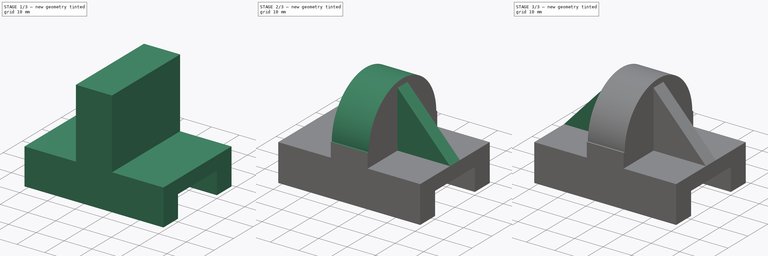
[diagram: build sequence overview — one tinted view per stage of 3, left to right]
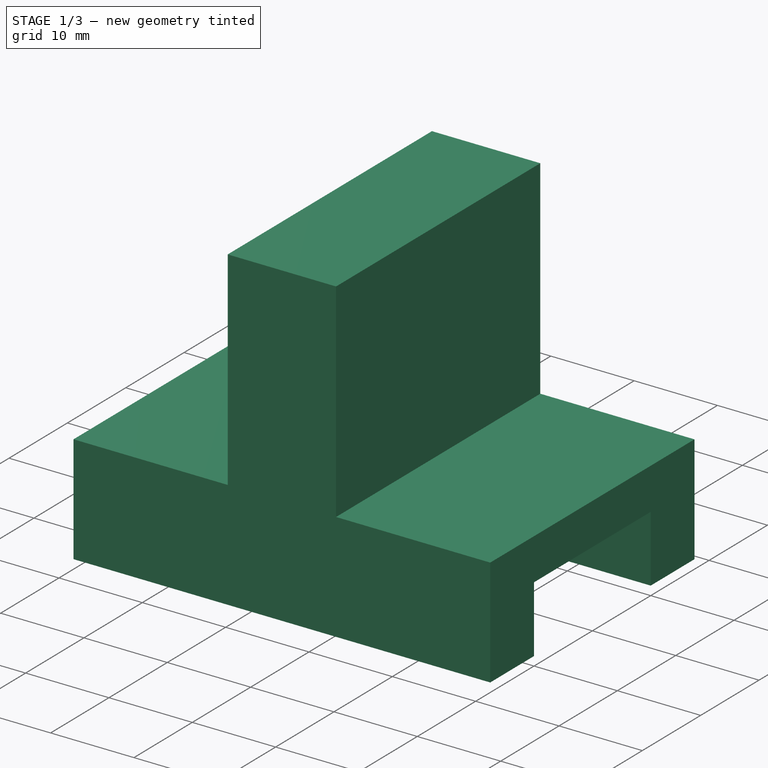
[diagram: stage 1 of 3 — iso view after this stage's code; geometry added in this stage tinted green]
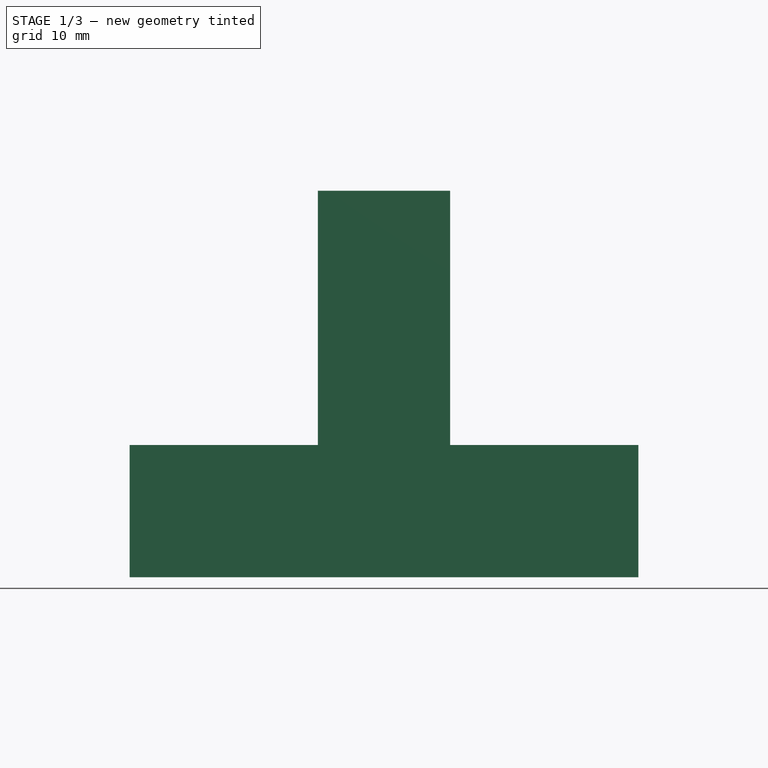
[diagram: stage 1 of 3 — front view after this stage's code; geometry added in this stage tinted green]
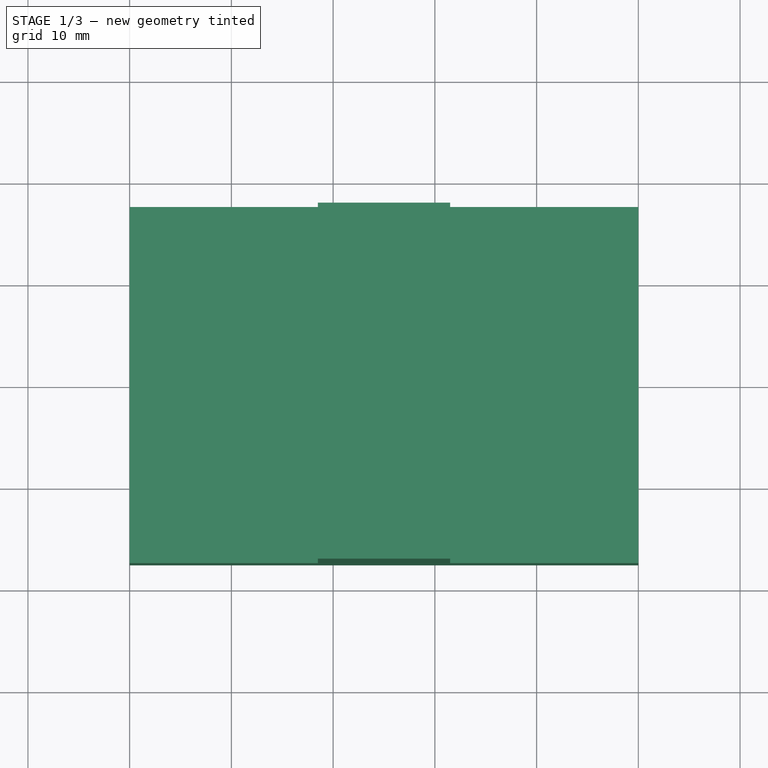
[diagram: stage 1 of 3 — top view after this stage's code; geometry added in this stage tinted green]
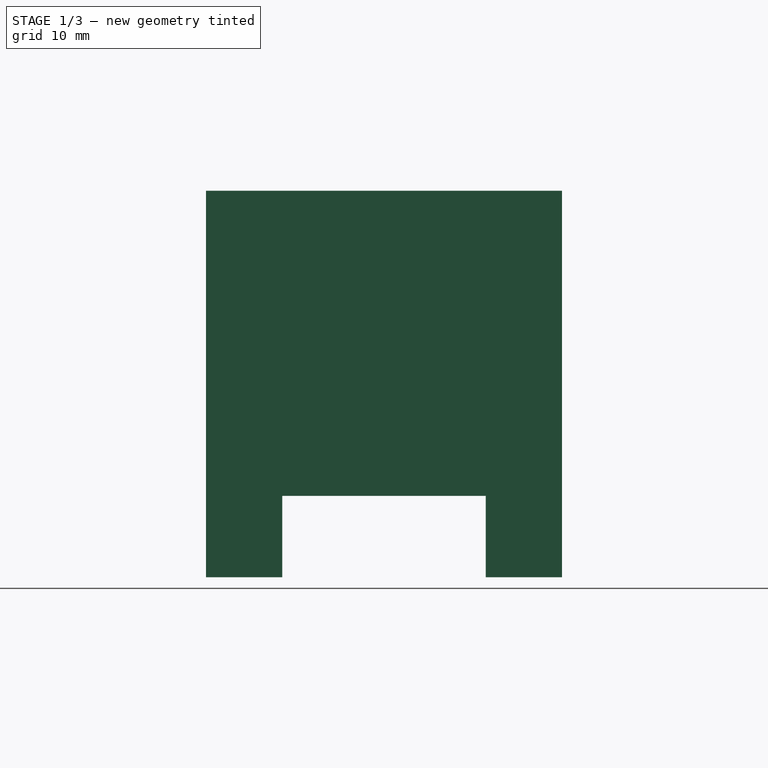
[diagram: stage 1 of 3 — right view after this stage's code; geometry added in this stage tinted green]
FCSTD DOCUMENT  (FreeCAD 1.0R39109 (Git))
Label: Задание1-3
License: All rights reserved
LicenseURL: https://en.wikipedia.org/wiki/All_rights_reserved
objects: Sketcher::SketchObject×7, PartDesign::Pad×4, PartDesign::Pocket×3, PartDesign::Body×1
note: 36 computed .brp shape members not serialized (recipe doc carries the construction recipe); baked Part::Feature solids carry a one-line shape summary decoded from their .brp

FEATURE [Sketcher::SketchObject] Sketch
  ArcFitTolerance = 1e-06
  AttachmentSupport = -> [YZ_Plane]
  FullyConstrained = true
  MakeInternals = false
  MapMode = 5
  Placement = pos=(0,0,0) rot=(0.57735,0.57735,0.57735;2.0944rad)
  sketch-geometry (8):
    g0: LineSegment StartX=17.5 StartY=0 StartZ=0 EndX=17.5 EndY=13 EndZ=0
    g1: LineSegment StartX=17.5 StartY=13 StartZ=0 EndX=-17.5 EndY=13 EndZ=0
    g2: LineSegment StartX=-17.5 StartY=13 StartZ=0 EndX=-17.5 EndY=0 EndZ=0
    g3: LineSegment StartX=-17.5 StartY=0 StartZ=0 EndX=-10 EndY=0 EndZ=0
    g4: LineSegment StartX=17.5 StartY=0 StartZ=0 EndX=10 EndY=0 EndZ=0
    g5: LineSegment StartX=-10 StartY=0 StartZ=0 EndX=-10 EndY=8 EndZ=0
    g6: LineSegment StartX=10 StartY=0 StartZ=0 EndX=10 EndY=8 EndZ=0
    g7: LineSegment StartX=10 StartY=8 StartZ=0 EndX=-10 EndY=8 EndZ=0
  constraints (24):
    c: Coincident(g0,g1)
    c: Coincident(g1,g2)
    c: Horizontal(g1)
    c: Vertical(g0)
    c: Vertical(g2)
    c: Distance(g0,g2) = 35
    c: Distance(g2,g1) = 13
    c: PointOnObject(g2,g-1)
    c: Distance(g0,g-2) = 17.5
    c: Distance(g3) = 7.5
    c: Coincident(g3,g2)
    c: PointOnObject(g3,g-1)
    c: Distance(g4) = 7.5
    c: Coincident(g4,g0)
    c: PointOnObject(g4,g-1)
    c: Horizontal(g4)
    c: Distance(g5) = 8
    c: Coincident(g5,g3)
    c: Vertical(g5)
    c: Distance(g6) = 8
    c: Coincident(g6,g4)
    c: Vertical(g6)
    c: Coincident(g7,g6)
    c: Coincident(g7,g5)
FEATURE [PartDesign::Pad] Pad
  Direction = (1,0,0)
  Length = 50
  Length2 = 10
  Placement = pos=(0,0,0) rot=(1,1,1;2.0944rad)
  Profile = -> Sketch
  ReferenceAxis = -> Sketch [N_Axis]
  Refine = true
  Suppressed = false
  Type = 0
FEATURE [Sketcher::SketchObject] Sketch001
  ArcFitTolerance = 1e-06
  AttachmentSupport = -> [Pad]
  FullyConstrained = true
  MakeInternals = false
  MapMode = 5
  Placement = pos=(0,2.9e-15,13) rot=(0,0,-1;1.5708rad)
  sketch-geometry (4):
    g0: LineSegment StartX=-17.5 StartY=31.5 StartZ=0 EndX=-17.5 EndY=18.5 EndZ=0
    g1: LineSegment StartX=-17.5 StartY=18.5 StartZ=0 EndX=17.5 EndY=18.5 EndZ=0
    g2: LineSegment StartX=17.5 StartY=18.5 StartZ=0 EndX=17.5 EndY=31.5 EndZ=0
    g3: LineSegment StartX=17.5 StartY=31.5 StartZ=0 EndX=-17.5 EndY=31.5 EndZ=0
  constraints (12):
    c: Coincident(g0,g1)
    c: Coincident(g1,g2)
    c: Coincident(g2,g3)
    c: Coincident(g3,g0)
    c: Vertical(g0)
    c: Vertical(g2)
    c: Horizontal(g1)
    c: Horizontal(g3)
    c: Distance(g0,g2) = 35
    c: Distance(g1,g3) = 13
    c: Distance(g1,g-2) = 17.5
    c: Distance(g1,g-1) = 18.5
FEATURE [PartDesign::Pad] Pad001
  BaseFeature = -> Pad
  Direction = (0,0,1)
  Length = 25
  Length2 = 10
  Placement = pos=(0,0,0) rot=(1,1,1;2.0944rad)
  Profile = -> Sketch001
  ReferenceAxis = -> Sketch001 [N_Axis]
  Refine = true
  Suppressed = false
  Type = 0
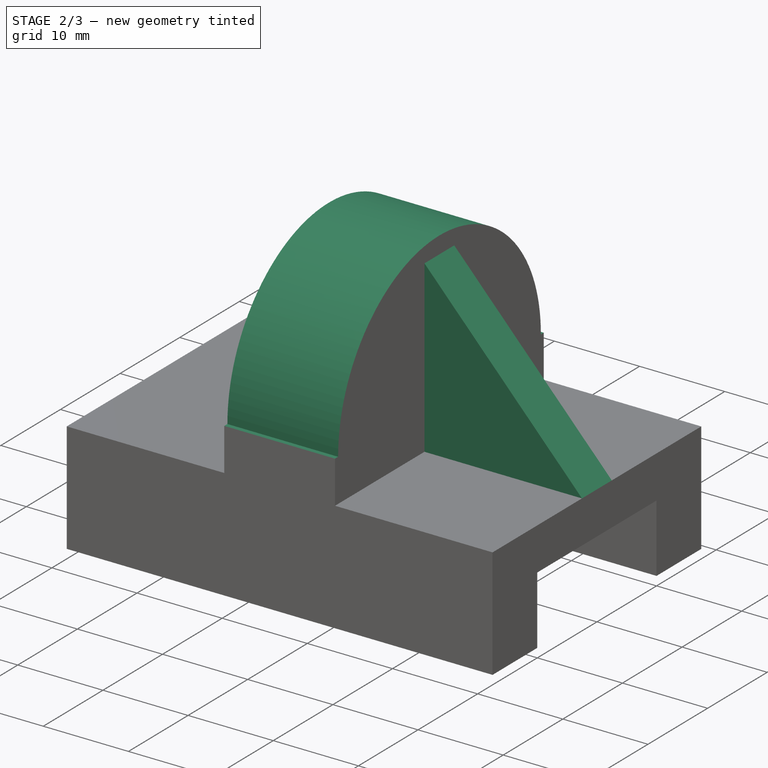
[diagram: stage 2 of 3 — iso view after this stage's code; geometry added in this stage tinted green]
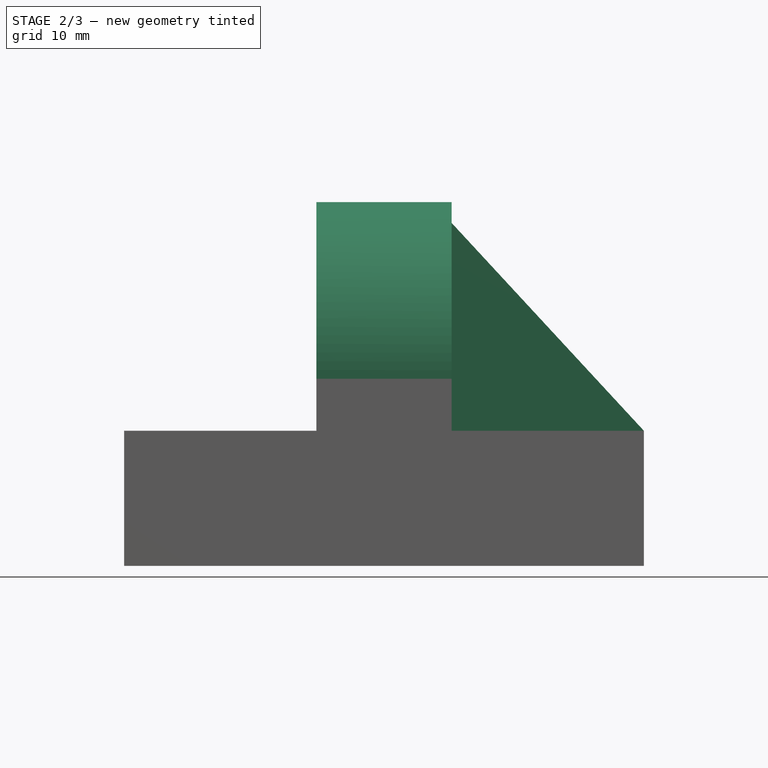
[diagram: stage 2 of 3 — front view after this stage's code; geometry added in this stage tinted green]
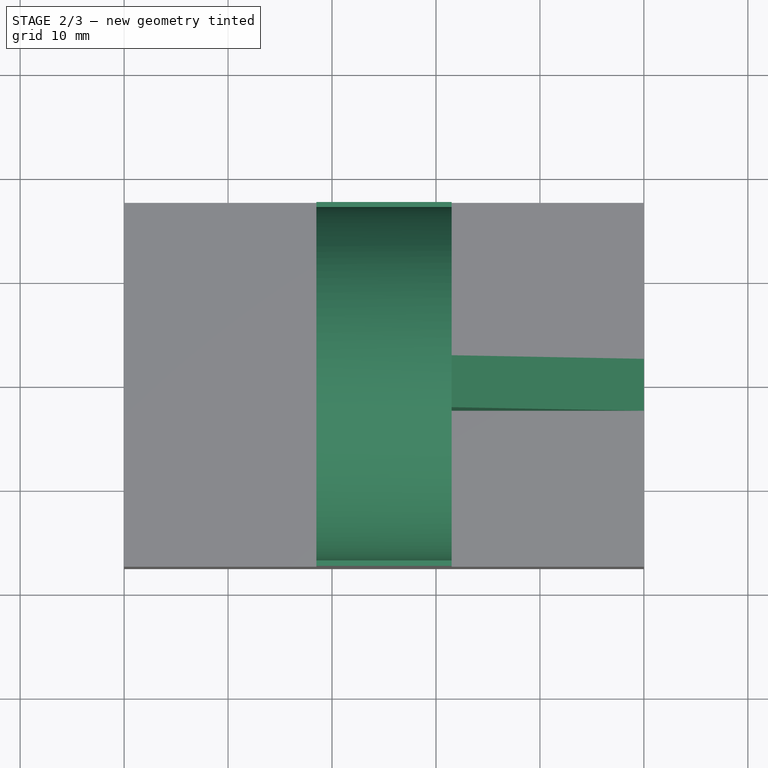
[diagram: stage 2 of 3 — top view after this stage's code; geometry added in this stage tinted green]
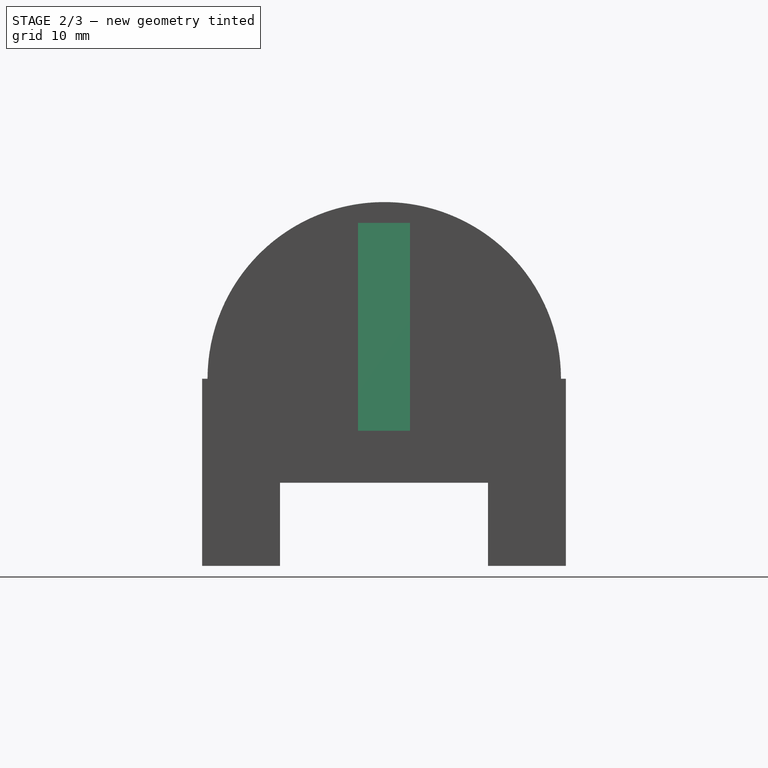
[diagram: stage 2 of 3 — right view after this stage's code; geometry added in this stage tinted green]
FEATURE [Sketcher::SketchObject] Sketch002
  ArcFitTolerance = 1e-06
  AttachmentSupport = -> [Pad001]
  FullyConstrained = true
  MakeInternals = false
  MapMode = 5
  Placement = pos=(31.5,6.9e-15,6.9e-15) rot=(0.57735,0.57735,0.57735;2.0944rad)
  sketch-geometry (7):
    g0: GeomPoint X=0 Y=0 Z=0
    g1: LineSegment StartX=-17.5 StartY=38 StartZ=0 EndX=-17.5 EndY=18 EndZ=0
    g2: LineSegment StartX=17.5 StartY=18 StartZ=0 EndX=17.5 EndY=38 EndZ=0
    g3: LineSegment StartX=17.5 StartY=38 StartZ=0 EndX=-17.5 EndY=38 EndZ=0
    g4: ArcOfCircle CenterX=0.0244084 CenterY=17.9997 CenterZ=0 NormalX=0 NormalY=0 NormalZ=1 AngleXU=0 Radius=17 StartAngle=1.93794e-05 EndAngle=3.14157
    g5: LineSegment StartX=-17.5 StartY=18 StartZ=0 EndX=-16.9756 EndY=18 EndZ=0
    g6: LineSegment StartX=17.5 StartY=18 StartZ=0 EndX=17.0244 EndY=18 EndZ=0
  constraints (19):
    c: Coincident(g0,g-1)
    c: Coincident(g2,g3)
    c: Coincident(g3,g1)
    c: Vertical(g1)
    c: Vertical(g2)
    c: Horizontal(g3)
    c: Distance(g1,g2) = 35
    c: Distance(g2,g-2) = 17.5
    c: Distance(g2,g-1) = 38
    c: Distance(g2,g-1) = 18
    c: Radius(g4) = 17
    c: Block(g4)
    c: DistanceY(g1,g1) = 20
    c: Coincident(g5,g1)
    c: Coincident(g5,g4)
    c: Horizontal(g5)
    c: Coincident(g6,g2)
    c: Coincident(g6,g4)
    c: Horizontal(g6)
FEATURE [PartDesign::Pocket] Pocket
  BaseFeature = -> Pad001
  Direction = (-1,0,0)
  Length = 5
  Length2 = 5
  Placement = pos=(0,0,0) rot=(1,1,1;2.0944rad)
  Profile = -> Sketch002
  ReferenceAxis = -> Sketch002 [N_Axis]
  Refine = true
  Suppressed = false
  Type = 1
FEATURE [Sketcher::SketchObject] Sketch003
  ArcFitTolerance = 1e-06
  AttachmentSupport = -> [Pocket]
  FullyConstrained = true
  MakeInternals = false
  MapMode = 5
  Placement = pos=(31.5,6.9e-15,6.9e-15) rot=(0.57735,0.57735,0.57735;2.0944rad)
  sketch-geometry (4):
    g0: LineSegment StartX=-2.5 StartY=33 StartZ=0 EndX=-2.5 EndY=13 EndZ=0
    g1: LineSegment StartX=-2.5 StartY=13 StartZ=0 EndX=2.5 EndY=13 EndZ=0
    g2: LineSegment StartX=2.5 StartY=13 StartZ=0 EndX=2.5 EndY=33 EndZ=0
    g3: LineSegment StartX=2.5 StartY=33 StartZ=0 EndX=-2.5 EndY=33 EndZ=0
  constraints (12):
    c: Coincident(g0,g1)
    c: Coincident(g1,g2)
    c: Coincident(g2,g3)
    c: Coincident(g3,g0)
    c: Vertical(g0)
    c: Vertical(g2)
    c: Horizontal(g1)
    c: Horizontal(g3)
    c: Distance(g2,g-2) = 2.5
    c: DistanceY(g2,g2) = 20
    c: DistanceX(g3,g3) = 5
    c: Distance(g2,g-1) = 33
FEATURE [PartDesign::Pad] Pad002
  BaseFeature = -> Pocket
  Direction = (1,0,0)
  Length = 18.5
  Length2 = 10
  Placement = pos=(0,0,0) rot=(1,1,1;2.0944rad)
  Profile = -> Sketch003
  ReferenceAxis = -> Sketch003 [N_Axis]
  Refine = true
  Suppressed = false
  Type = 0
FEATURE [Sketcher::SketchObject] Sketch004
  ArcFitTolerance = 1e-06
  AttachmentSupport = -> [Pad002]
  FullyConstrained = true
  MakeInternals = false
  MapMode = 5
  Placement = pos=(-6e-16,-2.5,0) rot=(0.57735,0.57735,-0.57735;2.0944rad)
  sketch-geometry (3):
    g0: LineSegment StartX=-33 StartY=50 StartZ=0 EndX=-33 EndY=31.5 EndZ=0
    g1: LineSegment StartX=-13 StartY=50 StartZ=0 EndX=-33 EndY=50 EndZ=0
    g2: LineSegment StartX=-13 StartY=50 StartZ=0 EndX=-33 EndY=31.5 EndZ=0
  constraints (9):
    c: Coincident(g1,g0)
    c: Vertical(g0)
    c: Horizontal(g1)
    c: Distance(g0,g1) = 20
    c: Distance(g0,g1) = 18.5
    c: Coincident(g2,g1)
    c: Coincident(g2,g0)
    c: Distance(g0,g-2) = 33
    c: Distance(g0,g-1) = 50
FEATURE [PartDesign::Pocket] Pocket001
  BaseFeature = -> Pad002
  Direction = (0,1,0)
  Length = 5
  Length2 = 5
  Placement = pos=(0,0,0) rot=(1,1,1;2.0944rad)
  Profile = -> Sketch004
  ReferenceAxis = -> Sketch004 [N_Axis]
  Refine = true
  Suppressed = false
  Type = 1
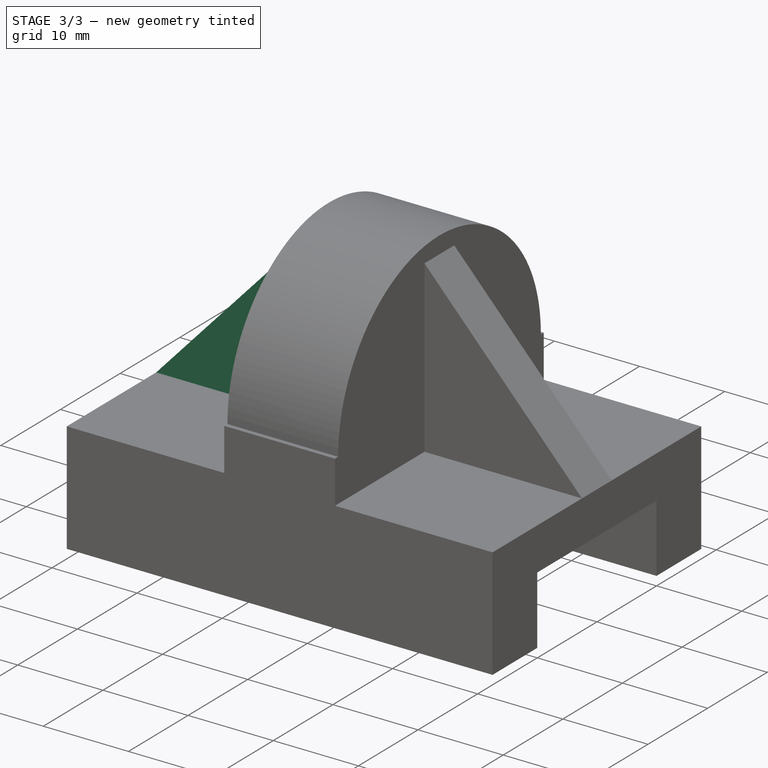
[diagram: stage 3 of 3 — iso view after this stage's code; geometry added in this stage tinted green]
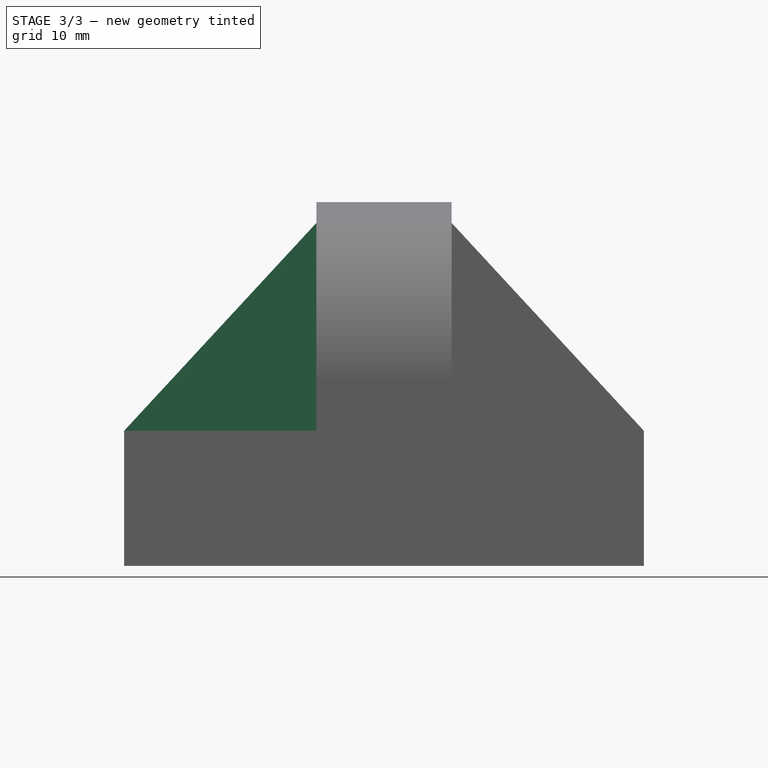
[diagram: stage 3 of 3 — front view after this stage's code; geometry added in this stage tinted green]
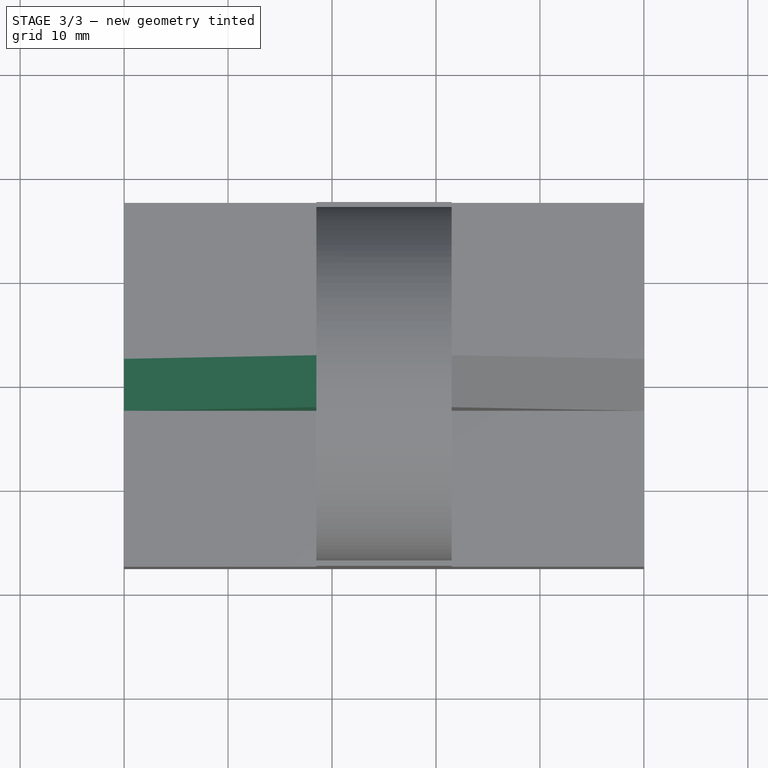
[diagram: stage 3 of 3 — top view after this stage's code; geometry added in this stage tinted green]
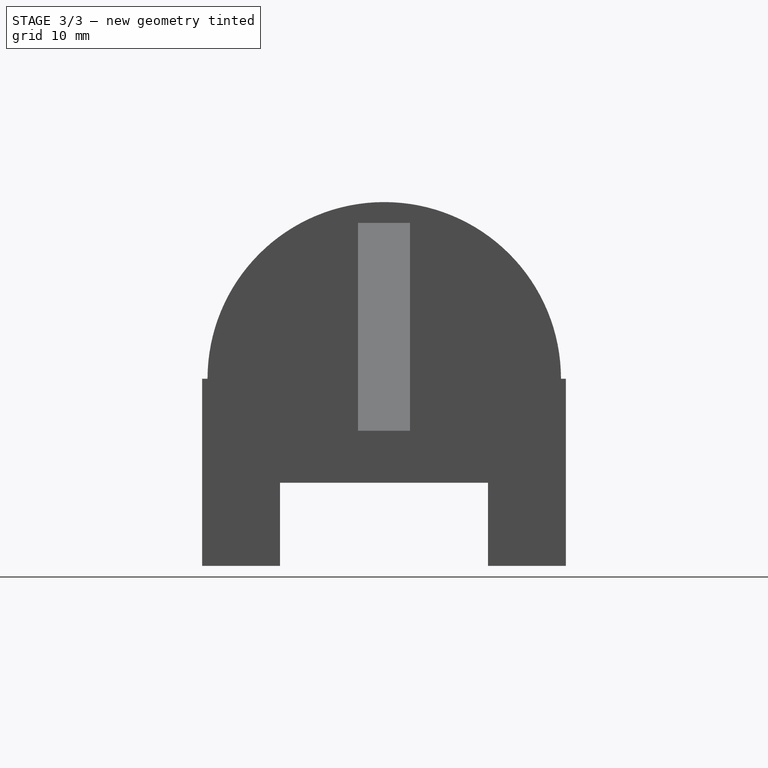
[diagram: stage 3 of 3 — right view after this stage's code; geometry added in this stage tinted green]
FEATURE [Sketcher::SketchObject] Sketch005
  ArcFitTolerance = 1e-06
  AttachmentSupport = -> [Pocket001]
  FullyConstrained = true
  MakeInternals = false
  MapMode = 5
  Placement = pos=(18.5,0,6.1e-15) rot=(0.57735,0.57735,-0.57735;4.18879rad)
  sketch-geometry (4):
    g0: LineSegment StartX=-2.5 StartY=-13 StartZ=0 EndX=-2.5 EndY=-33 EndZ=0
    g1: LineSegment StartX=-2.5 StartY=-33 StartZ=0 EndX=2.5 EndY=-33 EndZ=0
    g2: LineSegment StartX=2.5 StartY=-33 StartZ=0 EndX=2.5 EndY=-13 EndZ=0
    g3: LineSegment StartX=2.5 StartY=-13 StartZ=0 EndX=-2.5 EndY=-13 EndZ=0
  constraints (12):
    c: Coincident(g0,g1)
    c: Coincident(g1,g2)
    c: Coincident(g2,g3)
    c: Coincident(g3,g0)
    c: Vertical(g0)
    c: Vertical(g2)
    c: Horizontal(g1)
    c: Horizontal(g3)
    c: Distance(g0,g2) = 5
    c: Distance(g1,g3) = 20
    c: Distance(g2,g-1) = 13
    c: Distance(g2,g-2) = 2.5
FEATURE [PartDesign::Pad] Pad003
  BaseFeature = -> Pocket001
  Direction = (-1,0,0)
  Length = 18.5
  Length2 = 10
  Placement = pos=(0,0,0) rot=(1,1,1;2.0944rad)
  Profile = -> Sketch005
  ReferenceAxis = -> Sketch005 [N_Axis]
  Refine = true
  Suppressed = false
  Type = 0
FEATURE [Sketcher::SketchObject] Sketch006
  ArcFitTolerance = 1e-06
  AttachmentSupport = -> [Pad003]
  FullyConstrained = true
  MakeInternals = false
  MapMode = 5
  Placement = pos=(-6e-16,-2.5,3e-16) rot=(0.57735,0.57735,-0.57735;2.0944rad)
  sketch-geometry (3):
    g0: LineSegment StartX=-33 StartY=18.5 StartZ=0 EndX=-33 EndY=0 EndZ=0
    g1: LineSegment StartX=-33 StartY=0 StartZ=0 EndX=-13 EndY=0 EndZ=0
    g2: LineSegment StartX=-33 StartY=18.5 StartZ=0 EndX=-13 EndY=0 EndZ=0
  constraints (9):
    c: Coincident(g0,g1)
    c: Vertical(g0)
    c: Horizontal(g1)
    c: PointOnObject(g1,g-1)
    c: Coincident(g2,g0)
    c: Coincident(g2,g1)
    c: DistanceY(g0,g0) = 18.5
    c: Distance(g0,g-2) = 33
    c: Distance(g1,g-2) = 13
FEATURE [PartDesign::Pocket] Pocket002
  BaseFeature = -> Pad003
  Direction = (0,1,0)
  Length = 5
  Length2 = 5
  Placement = pos=(0,0,0) rot=(1,1,1;2.0944rad)
  Profile = -> Sketch006
  ReferenceAxis = -> Sketch006 [N_Axis]
  Refine = true
  Suppressed = false
  Type = 1
FEATURE [PartDesign::Body] Body  label="Тело"
  AllowCompound = false
  Group = -> [Sketch,Pad,Sketch001,Pad001,Sketch002,Pocket,Sketch003,Pad002,Sketch004,Pocket001,Sketch005,Pad003,Sketch006,Pocket002]
  Origin = -> Origin
  Tip = -> Pocket002
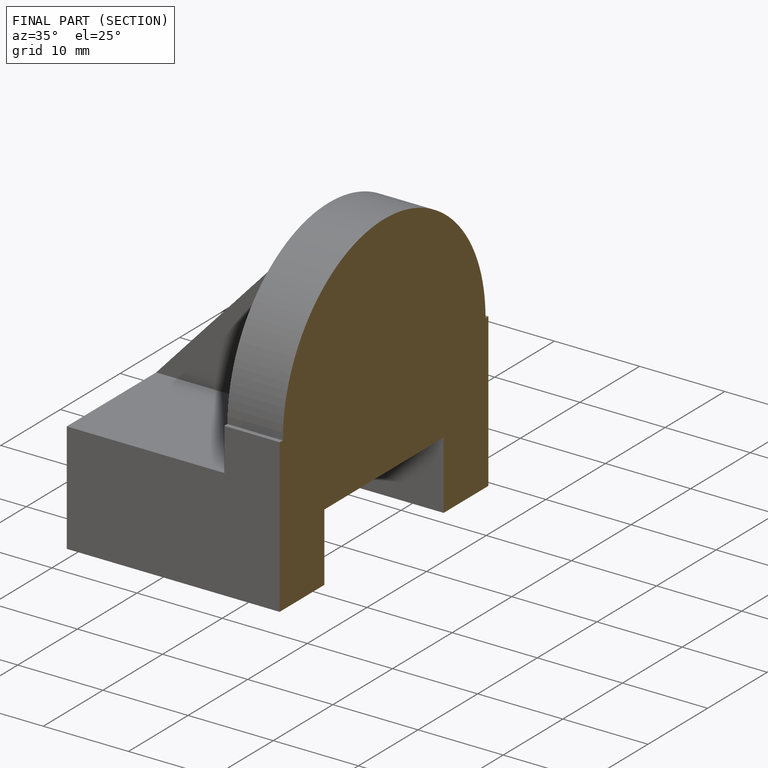
[diagram: finished part — half-section view (interior)]
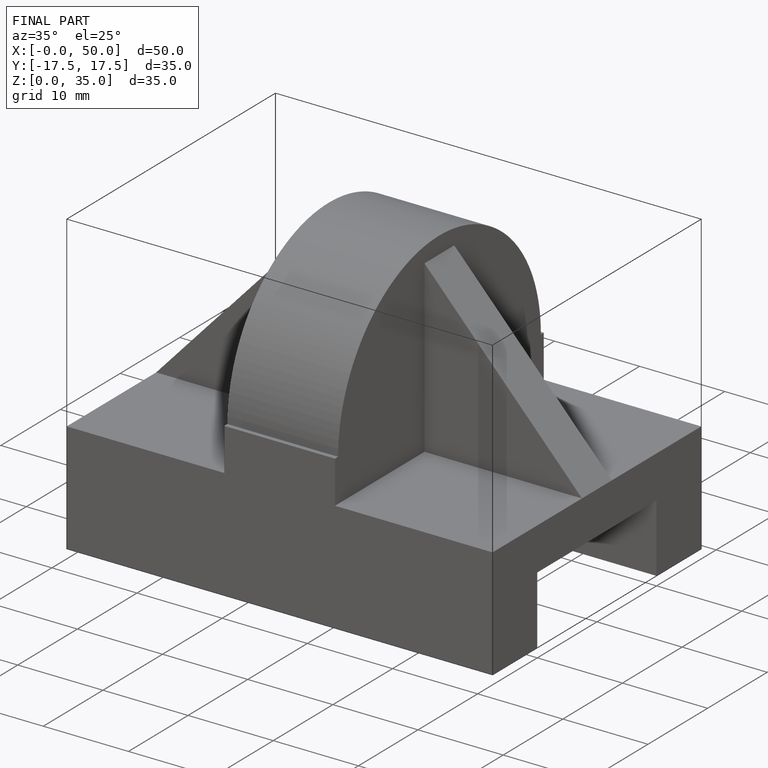
[diagram: finished part — iso view with bounding-box wireframe]
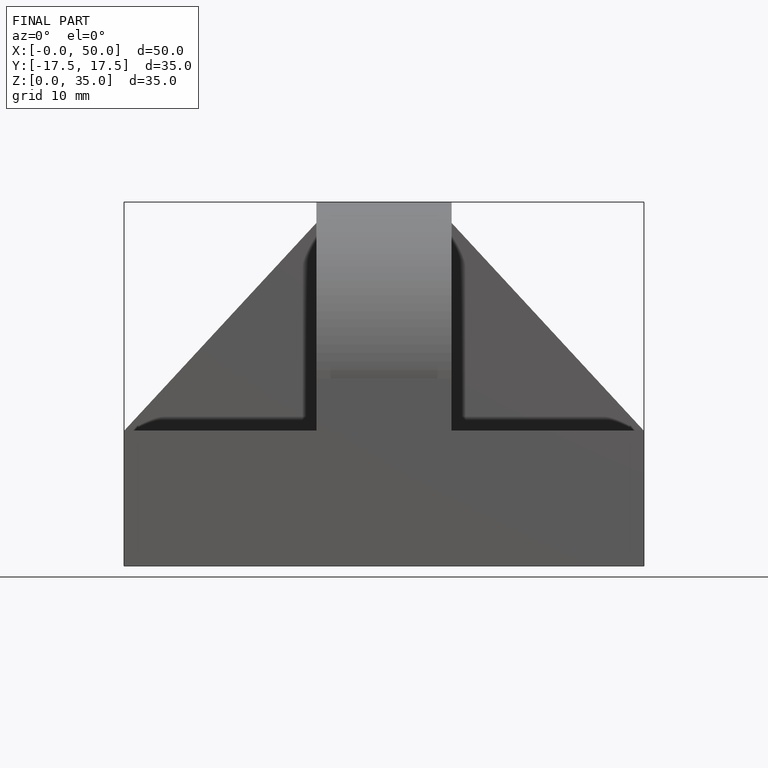
[diagram: finished part — front view with bounding-box wireframe]
